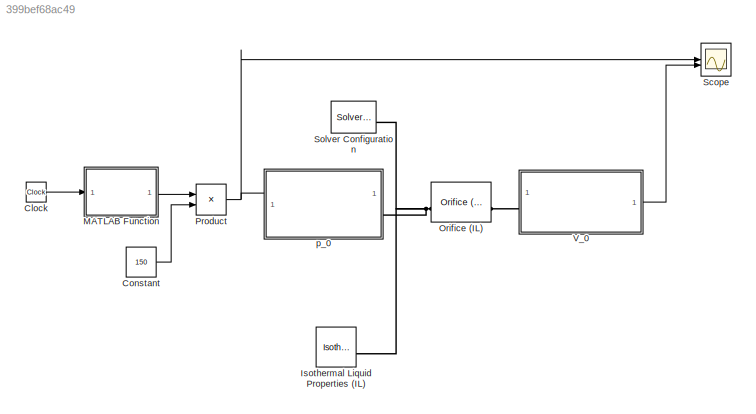
MODEL slx_399bef68ac49
KIND model
CONFIG AbsTol = auto
CONFIG EnableMultiTasking = off
CONFIG FixedStep = auto
CONFIG MaxStep = auto
CONFIG MinStep = auto
CONFIG RelTol = 1e-3
CONFIG SampleTimeConstraint = Unconstrained
CONFIG SolverName = VariableStepAuto
CONFIG StartTime = 0.0
CONFIG StopTime = 0.5
BLOCK [Clock] Clock
BLOCK [Constant] Constant
  Value = 150
BLOCK [Reference] Isothermal Liquid Properties (IL)  REF=fl_lib/Isothermal Liquid/Utilities/Isothermal Liquid
Properties (IL)
  SourceBlock = fl_lib/Isothermal Liquid/Utilities/Isothermal Liquid\nProperties (IL)
  SourceType = Isothermal Liquid\nProperties (IL)
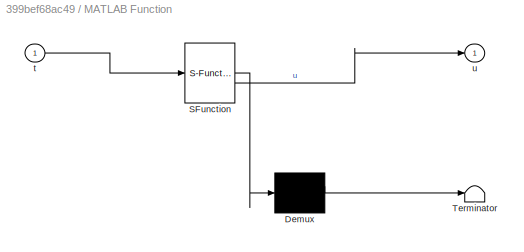
BLOCK [SubSystem] MATLAB Function
  ErrorFcn = Stateflow.Translate.translate
  LibrarySourceBlock = simulink/User-Defined\nFunctions/MATLAB Function
  PermitHierarchicalResolution = ExplicitOnly
  SFBlockType = MATLAB Function
  TreatAsAtomicUnit = on
BLOCK [Demux] MATLAB Function/ Demux 
  Outputs = 1
BLOCK [S-Function] MATLAB Function/ SFunction 
  EnableBusSupport = on
  FunctionName = sf_sfun
  PortCounts = [1 2]
  SFcnIsStateOwnerBlock = off
  SFunctionDeploymentMode = off
  Tag = Stateflow S-Function 2
BLOCK [Terminator] MATLAB Function/ Terminator 
BLOCK [Inport] MATLAB Function/t
BLOCK [Outport] MATLAB Function/u
BLOCK [Reference] Orifice (IL)  REF=SimscapeFluids_lib/Isothermal Liquid/Valves & Orifices/Orifices/Orifice (IL)
  SourceBlock = SimscapeFluids_lib/Isothermal Liquid/Valves & Orifices/Orifices/Orifice (IL)
  SourceType = Orifice (IL)
BLOCK [Product] Product
BLOCK [Scope] Scope
  Floating = off
  NumInputPorts = 2
  ScopeSpecificationString = Simulink.scopes.TimeScopeBlockCfg('CurrentConfiguration', extmgr.ConfigurationSet(extmgr.Configuration('Core','General UI',true),extmgr.Configuration('Core','Source UI',true),extmgr.Configuration('Sources','WiredSimulink',true),extmgr.Configuration('Visuals','Time Domain',true,'SerializedDisplays',{struct('MinYLimReal','-18.77061','MaxYLimReal','168.80295','YLabelReal','','MinYLimMag','0.00000','M...<+1544ch>
BLOCK [Reference] Solver Configuration  REF=nesl_utility/Solver
Configuration
  SourceBlock = nesl_utility/Solver\nConfiguration
  SourceType = Solver\nConfiguration
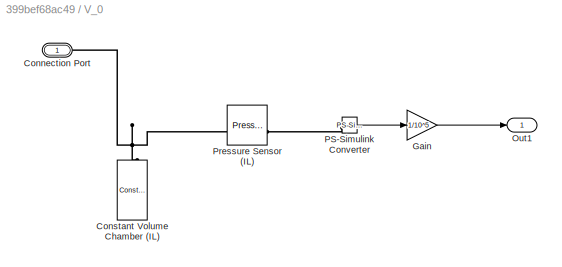
BLOCK [SubSystem] V_0
BLOCK [PMIOPort] V_0/Connection Port
  Side = Left
BLOCK [Reference] V_0/Constant Volume Chamber (IL)  REF=fl_lib/Isothermal Liquid/Elements/Constant Volume
Chamber (IL)
  NameLocation = right
  SourceBlock = fl_lib/Isothermal Liquid/Elements/Constant Volume\nChamber (IL)
  SourceType = Constant Volume\nChamber (IL)
BLOCK [Gain] V_0/Gain
  Gain = 1/10^5
BLOCK [Outport] V_0/Out1
BLOCK [Reference] V_0/PS-Simulink Converter  REF=nesl_utility/PS-Simulink
Converter
  SourceBlock = nesl_utility/PS-Simulink\nConverter
  SourceType = PS-Simulink\nConverter
BLOCK [Reference] V_0/Pressure Sensor (IL)  REF=fl_lib/Isothermal Liquid/Sensors/Pressure Sensor (IL)
  SourceBlock = fl_lib/Isothermal Liquid/Sensors/Pressure Sensor (IL)
  SourceType = Pressure Sensor (IL)
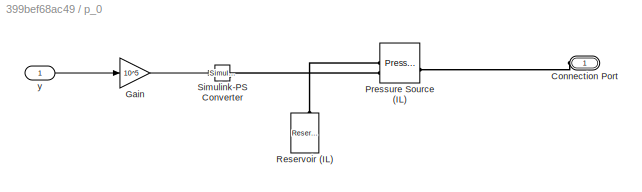
BLOCK [SubSystem] p_0
  PortSchema = {"entries":[{"content":{"sides":[{"content":{"connectorIds":["LConn1"]},"type":"ConnectorPlacement.EquallySpacedRectSide","uuid":"c4662dc8-9dce-4e03-a503-caebb8aa604d"},{"content":{"connectorIds":["In1"],"side":"RIGHT"},"type":"ConnectorPlacement.EquallySpacedRectSide","uuid":"29be6a65-4201-4b09-abee-03d6b9c83b9e"},{"content":{"side":"TOP"},"type":"ConnectorPlacement.EquallySpacedRectSide","uuid":...<+224ch>
BLOCK [PMIOPort] p_0/Connection Port
  Side = Left
BLOCK [Gain] p_0/Gain
  Gain = 10^5
BLOCK [Reference] p_0/Pressure Source (IL)  REF=fl_lib/Isothermal Liquid/Sources/Pressure Source (IL)
  SourceBlock = fl_lib/Isothermal Liquid/Sources/Pressure Source (IL)
  SourceType = Pressure Source (IL)
BLOCK [Reference] p_0/Reservoir (IL)  REF=fl_lib/Isothermal Liquid/Elements/Reservoir (IL)
  NameLocation = right
  SourceBlock = fl_lib/Isothermal Liquid/Elements/Reservoir (IL)
  SourceType = Reservoir (IL)
BLOCK [Reference] p_0/Simulink-PS Converter  REF=nesl_utility/Simulink-PS
Converter
  SourceBlock = nesl_utility/Simulink-PS\nConverter
  SourceType = Simulink-PS\nConverter
BLOCK [Inport] p_0/y
LINE Clock:1 -> MATLAB Function:1
LINE Constant:1 -> Product:2
LINE MATLAB Function:1 -> Product:1
NET Product:1 -> Scope:1, p_0:1
LINE V_0/Gain:1 -> V_0/Out1:1
LINE V_0/PS-Simulink Converter:1 -> V_0/Gain:1
LINE V_0:1 -> Scope:2
LINE p_0/Gain:1 -> p_0/Simulink-PS Converter:1
LINE p_0/y:1 -> p_0/Gain:1
PNET net1: Isothermal Liquid Properties (IL):RConn1 -- Orifice (IL):LConn1 -- Solver Configuration:RConn1 -- p_0:LConn1
PLINE Orifice (IL):RConn1 -- V_0:LConn1
PNET net2: V_0/Connection Port:RConn1 -- V_0/Constant Volume Chamber (IL):LConn1 -- V_0/Pressure Sensor (IL):LConn1
PLINE V_0/PS-Simulink Converter:LConn1 -- V_0/Pressure Sensor (IL):RConn1
PLINE p_0/Connection Port:RConn1 -- p_0/Pressure Source (IL):RConn1
PLINE p_0/Pressure Source (IL):LConn1 -- p_0/Reservoir (IL):LConn1
PLINE p_0/Pressure Source (IL):LConn2 -- p_0/Simulink-PS Converter:RConn1
note: NET lines group one-source signal fan-out (src -> all destinations, sorted); 1:1 wires keep LINE; PNET lines group multi-terminal physical nets as a canonical sorted terminal list (undirected conserving connections); 2-terminal nets keep the pairwise PLINE form
CHART MATLAB Function states=1 transitions=1
  STATE_LABEL 'eML_blk_kernel()'
  STATE_LABEL 'SCRIPT:\nfunction u = fcn(t)\ntRamp = 0.3;\nif t < tRamp\n    u = t/tRamp;\nelse\n    u = 1;\nend\n'
CHART  states=0 transitions=0
